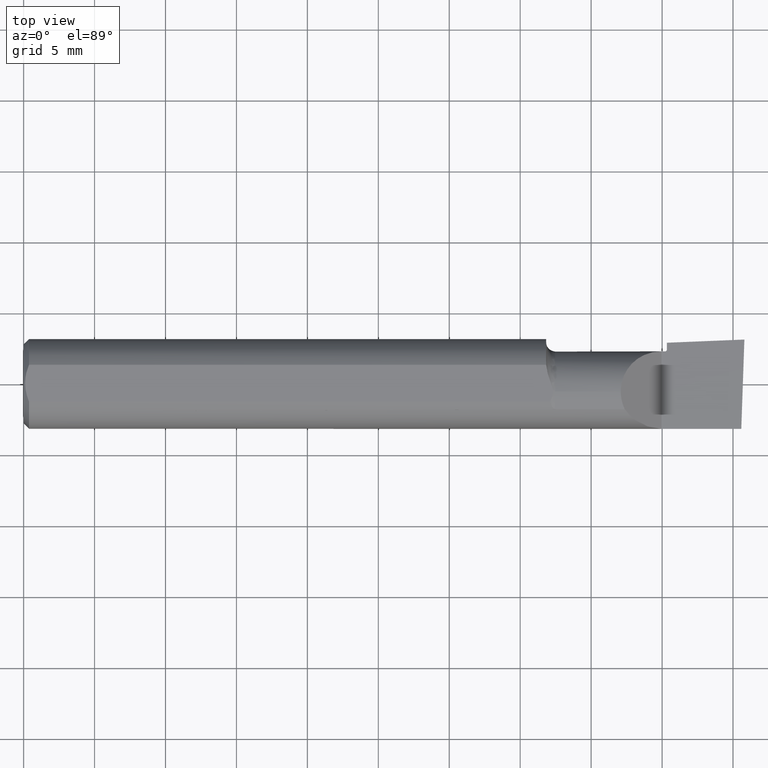
[diagram: clean part render]
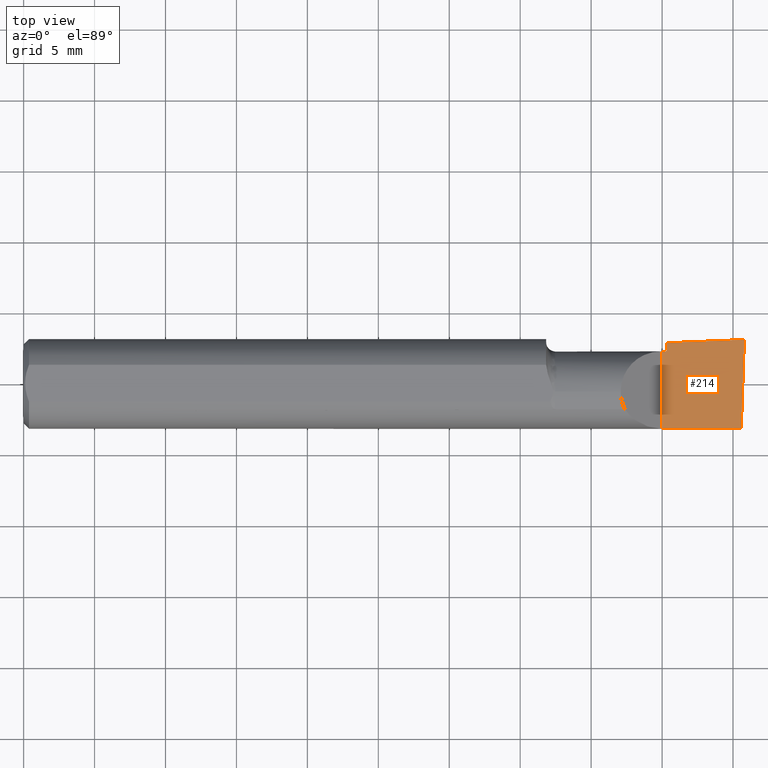
[diagram: same view with one face highlighted and labeled with its STEP entity id]
A machine part, top view. The second image highlights one B-rep face of the part: STEP entity #214.
In plain terms, the highlighted planar face has unit normal (-0, 0, -1).
Its self-contained STEP definition (entity closure, byte-faithful):
#1 = CARTESIAN_POINT ( 'NONE',  ( 2.000000000000000444, 0.1230320432091886601, 1.365923996832131609E-16 ) ) ;
#4 = VECTOR ( 'NONE', #643, 39.37007874015748854 ) ;
#13 = ORIENTED_EDGE ( 'NONE', *, *, #743, .F. ) ;
#21 = CARTESIAN_POINT ( 'NONE',  ( 1.656999999999999806, -0.1248500000000000026, -2.675152579924983035E-17 ) ) ;
#35 = VERTEX_POINT ( 'NONE', #694 ) ;
#40 = CARTESIAN_POINT ( 'NONE',  ( 1.789291615022104320, 0.1143652283911643641, -2.675152579924983035E-17 ) ) ;
#49 = ORIENTED_EDGE ( 'NONE', *, *, #569, .T. ) ;
#59 = EDGE_CURVE ( 'NONE', #108, #35, #303, .T. ) ;
#96 = CARTESIAN_POINT ( 'NONE',  ( 1.991409262084114173, -0.1248500000000000026, -2.675152579924983035E-17 ) ) ;
#101 = VECTOR ( 'NONE', #239, 39.37007874015748143 ) ;
#108 = VERTEX_POINT ( 'NONE', #417 ) ;
#124 = CARTESIAN_POINT ( 'NONE',  ( 2.000000000000000444, 0.1230320432091886601, 1.365923996832131609E-16 ) ) ;
#136 = CARTESIAN_POINT ( 'NONE',  ( 1.999651453384543975, 0.1129748807117507969, -2.675152579924983035E-17 ) ) ;
#145 = EDGE_CURVE ( 'NONE', #455, #630, #659, .T. ) ;
#146 = ORIENTED_EDGE ( 'NONE', *, *, #453, .F. ) ;
#154 = DIRECTION ( 'NONE',  ( -1.000000000000000000, 0.000000000000000000, 0.000000000000000000 ) ) ;
#161 = CARTESIAN_POINT ( 'NONE',  ( 1.865249755877900206, 0.1174932720492049554, -2.675152579924983035E-17 ) ) ;
#214 = ADVANCED_FACE ( 'NONE', ( #317 ), #558, .F. ) ;
#231 = CARTESIAN_POINT ( 'NONE',  ( 1.784999999999999698, 0.1141884658606290570, -2.561107494060246767E-17 ) ) ;
#239 = DIRECTION ( 'NONE',  ( 1.000000000000000000, 0.000000000000000000, 0.000000000000000000 ) ) ;
#247 = DIRECTION ( 'NONE',  ( 0.000000000000000000, -1.000000000000000000, 0.000000000000000000 ) ) ;
#265 = DIRECTION ( 'NONE',  ( 0.000000000000000000, 0.000000000000000000, 1.000000000000000000 ) ) ;
#270 = CIRCLE ( 'NONE', #447, 0.004999999999999810152 ) ;
#279 = ORIENTED_EDGE ( 'NONE', *, *, #59, .F. ) ;
#282 = ORIENTED_EDGE ( 'NONE', *, *, #543, .T. ) ;
#290 = LINE ( 'NONE', #21, #739 ) ;
#294 = CARTESIAN_POINT ( 'NONE',  ( 1.784999999999999698, 0.09514999999999994296, 0.000000000000000000 ) ) ;
#303 = LINE ( 'NONE', #647, #101 ) ;
#305 = VERTEX_POINT ( 'NONE', #444 ) ;
#314 = LINE ( 'NONE', #424, #524 ) ;
#317 = FACE_OUTER_BOUND ( 'NONE', #675, .T. ) ;
#333 = CARTESIAN_POINT ( 'NONE',  ( 1.656999999999999806, 0.1248500000000000026, -2.675152579924983035E-17 ) ) ;
#340 = CARTESIAN_POINT ( 'NONE',  ( 1.797874846902438817, 0.1147187088710839437, -2.675152579924983035E-17 ) ) ;
#366 = VECTOR ( 'NONE', #247, 39.37007874015748143 ) ;
#378 = DIRECTION ( 'NONE',  ( -1.000000000000000000, 0.000000000000000000, 0.000000000000000000 ) ) ;
#417 = CARTESIAN_POINT ( 'NONE',  ( 1.769999999999999352, 0.09014999999999989688, -2.675152579924983035E-17 ) ) ;
#424 = CARTESIAN_POINT ( 'NONE',  ( 1.784999999999999698, 0.1248500000000000026, -2.675152579924983035E-17 ) ) ;
#429 = EDGE_CURVE ( 'NONE', #451, #630, #515, .T. ) ;
#444 = CARTESIAN_POINT ( 'NONE',  ( 1.769999999999999352, -0.1248500000000000026, -2.675152579924983035E-17 ) ) ;
#447 = AXIS2_PLACEMENT_3D ( 'NONE', #452, #265, #378 ) ;
#451 = VERTEX_POINT ( 'NONE', #231 ) ;
#452 = CARTESIAN_POINT ( 'NONE',  ( 1.779999999999999805, 0.09514999999999994296, 0.000000000000000000 ) ) ;
#453 = EDGE_CURVE ( 'NONE', #35, #581, #270, .T. ) ;
#455 = VERTEX_POINT ( 'NONE', #96 ) ;
#456 = LINE ( 'NONE', #582, #366 ) ;
#490 = DIRECTION ( 'NONE',  ( -0.000000000000000000, 0.000000000000000000, -1.000000000000000000 ) ) ;
#508 = CARTESIAN_POINT ( 'NONE',  ( 1.932624814323846252, 0.1202642073425122388, -2.675152579924983035E-17 ) ) ;
#515 = B_SPLINE_CURVE_WITH_KNOTS ( 'NONE', 3,
 ( #672, #40, #681, #340, #161, #508, #1 ),
 .UNSPECIFIED., .F., .F.,
 ( 4, 3, 4 ),
 ( 0.007412947955592157946, 0.007740246287614602379, 0.01287856577457158376 ),
 .UNSPECIFIED. ) ;
#523 = AXIS2_PLACEMENT_3D ( 'NONE', #333, #490, #154 ) ;
#524 = VECTOR ( 'NONE', #547, 39.37007874015748143 ) ;
#543 = EDGE_CURVE ( 'NONE', #305, #455, #290, .T. ) ;
#547 = DIRECTION ( 'NONE',  ( 0.000000000000000000, 1.000000000000000000, 0.000000000000000000 ) ) ;
#558 = PLANE ( 'NONE',  #523 ) ;
#562 = ORIENTED_EDGE ( 'NONE', *, *, #145, .T. ) ;
#569 = EDGE_CURVE ( 'NONE', #108, #305, #456, .T. ) ;
#577 = ORIENTED_EDGE ( 'NONE', *, *, #429, .F. ) ;
#581 = VERTEX_POINT ( 'NONE', #294 ) ;
#582 = CARTESIAN_POINT ( 'NONE',  ( 1.769999999999999352, -0.1248500000000000026, -2.675152579924983035E-17 ) ) ;
#630 = VERTEX_POINT ( 'NONE', #124 ) ;
#643 = DIRECTION ( 'NONE',  ( 0.03463576215158789551, 0.9994000019912839816, 0.000000000000000000 ) ) ;
#647 = CARTESIAN_POINT ( 'NONE',  ( 0.000000000000000000, 0.09014999999999993852, -2.675152579924983035E-17 ) ) ;
#648 = DIRECTION ( 'NONE',  ( 1.000000000000000000, -0.000000000000000000, -0.000000000000000000 ) ) ;
#659 = LINE ( 'NONE', #136, #4 ) ;
#672 = CARTESIAN_POINT ( 'NONE',  ( 1.784999999999999698, 0.1141884658606290570, -2.561107494060246767E-17 ) ) ;
#675 = EDGE_LOOP ( 'NONE', ( #282, #562, #577, #13, #146, #279, #49 ) ) ;
#681 = CARTESIAN_POINT ( 'NONE',  ( 1.793583230658401195, 0.1145419760103439100, -2.675152579924983035E-17 ) ) ;
#694 = CARTESIAN_POINT ( 'NONE',  ( 1.779999999999999805, 0.09014999999999992464, -2.675152579924983035E-17 ) ) ;
#739 = VECTOR ( 'NONE', #648, 39.37007874015748143 ) ;
#743 = EDGE_CURVE ( 'NONE', #581, #451, #314, .T. ) ;